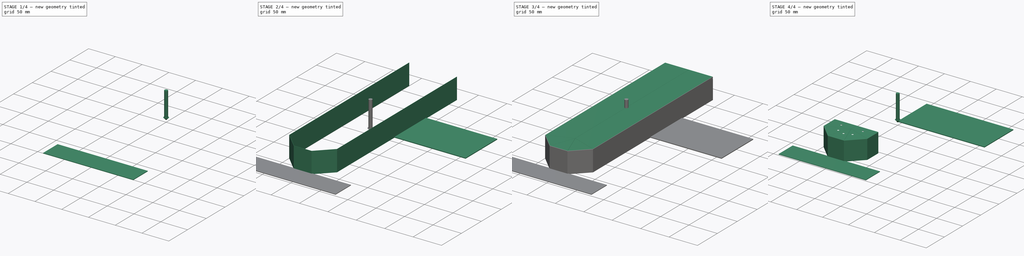
[diagram: build sequence overview — one tinted view per stage of 4, left to right]
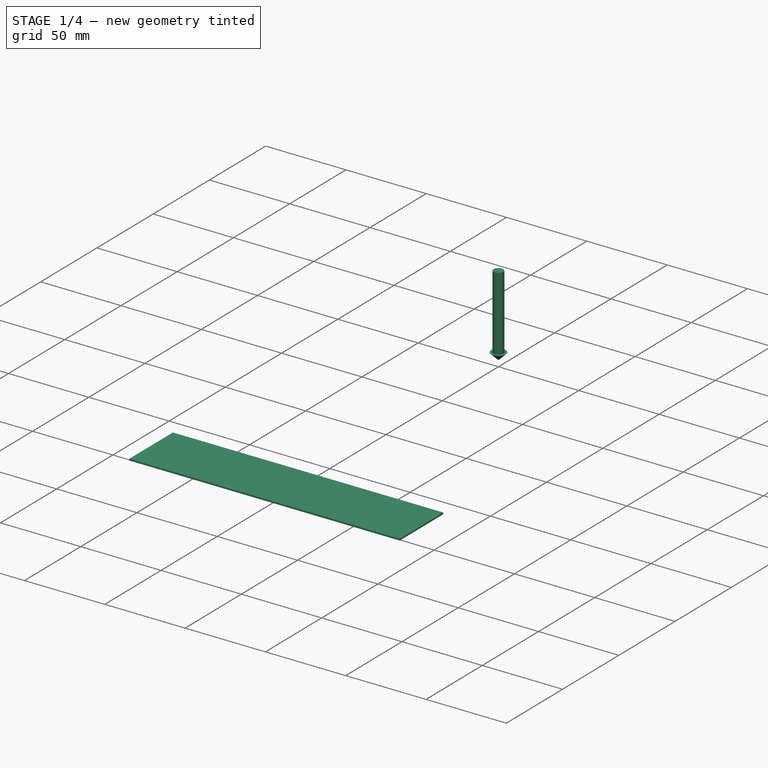
[diagram: stage 1 of 4 — iso view after this stage's code; geometry added in this stage tinted green]
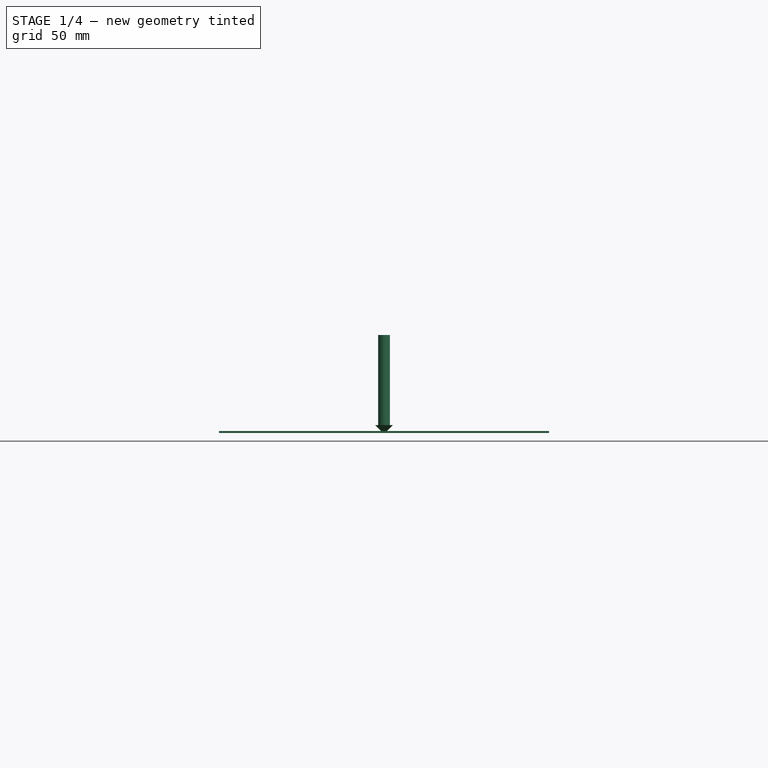
[diagram: stage 1 of 4 — front view after this stage's code; geometry added in this stage tinted green]
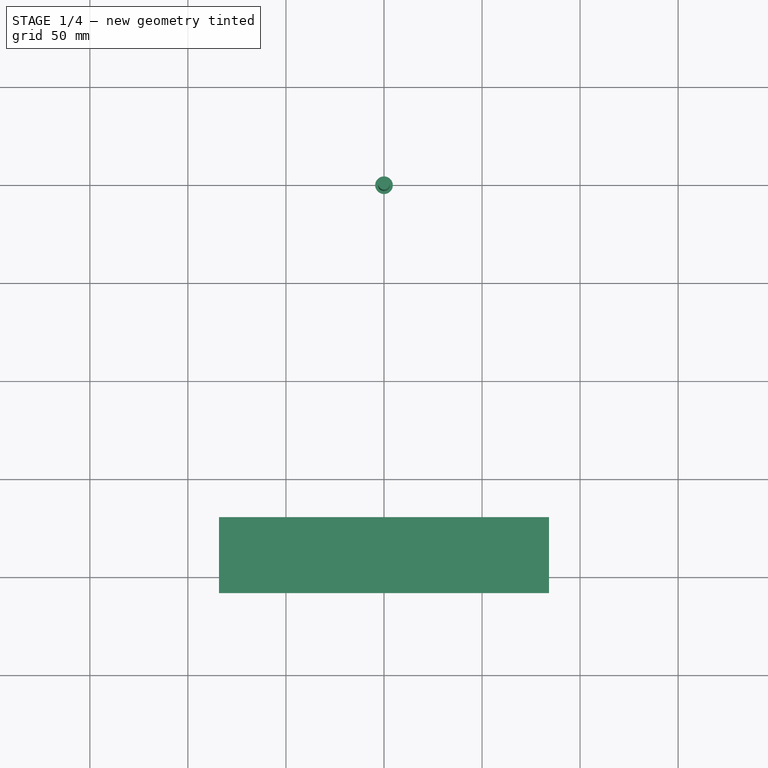
[diagram: stage 1 of 4 — top view after this stage's code; geometry added in this stage tinted green]
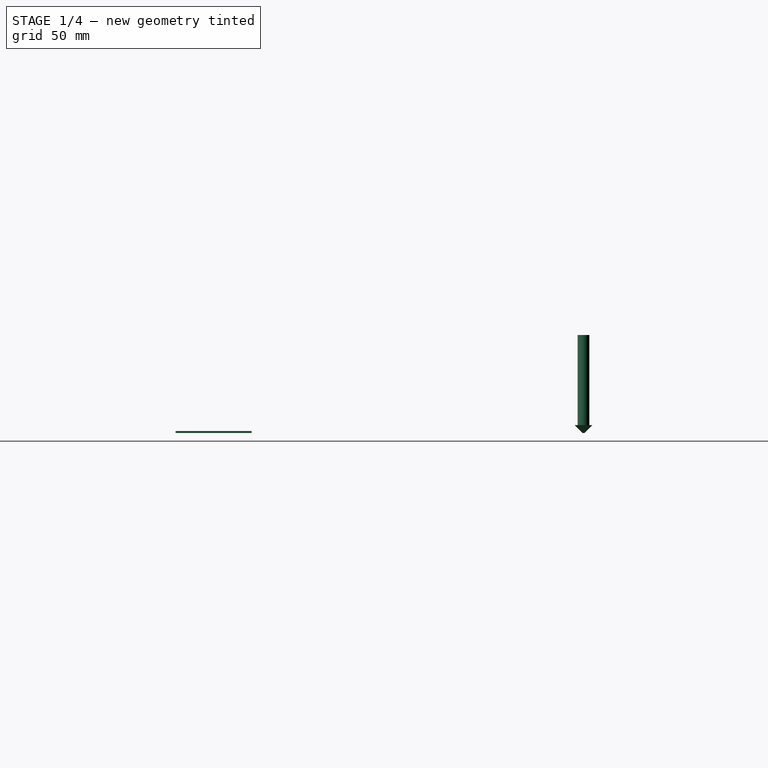
[diagram: stage 1 of 4 — right view after this stage's code; geometry added in this stage tinted green]
FCSTD DOCUMENT  (FreeCAD 0.21R32532 (Git))
Label: composit_full_size2part_test_cup
License: All rights reserved
LicenseURL: http://en.wikipedia.org/wiki/All_rights_reserved
objects: Sketcher::SketchObject×9, Path::FeaturePython×7, Part::FeaturePython×6, App::DocumentObjectGroup×6, PartDesign::FeaturePython×4, PartDesign::Pocket×3, PartDesign::Body×2, App::FeaturePython×2, App::Link×1, PartDesign::Mirrored×1, Part::Feature×1, Part::Part2DObjectPython×1
note: 32 computed .brp shape members not serialized (recipe doc carries the construction recipe); baked Part::Feature solids carry a one-line shape summary decoded from their .brp
EXTERNAL_REF file=composit_full_size2part.FCStd obj=Part

FEATURE [PartDesign::Body] Body  label="Body_material_0.30ansi"
  Group = -> [Sketch,BaseBend,Bend,Sketch001,Pocket,Mirrored,Bend001,Bend002,Sketch002,Sketch003,Pocket001,Sketch004,WireFilter,Pocket002]
  Origin = -> Origin
  Tip = -> Pocket002
FEATURE [Part::Feature] Unfold
  shape: bbox 166.3 x 78.55 x 0.3 mm, 32 faces (baked)
FEATURE [Sketcher::SketchObject] Unfold_Sketch
  FullyConstrained = false
  sketch-geometry (30):
    g0: LineSegment StartX=-83.1592 StartY=-128.45 StartZ=0 EndX=-68.3959 EndY=-128.45 EndZ=0
    g1: LineSegment StartX=-68.3959 StartY=-128.45 StartZ=0 EndX=-52.919 EndY=-169.931 EndZ=0
    g2: LineSegment StartX=-34.198 StartY=-129.798 StartZ=0 EndX=-15.8262 EndY=-170.038 EndZ=0
    g3: LineSegment StartX=-52.5697 StartY=-170.038 StartZ=0 EndX=-34.198 EndY=-129.798 EndZ=0
    g4: LineSegment StartX=15.477 StartY=-169.931 StartZ=0 EndX=1.6e-14 EndY=-128.45 EndZ=0
    g5: LineSegment StartX=-15.477 StartY=-169.931 StartZ=0 EndX=5.3e-15 EndY=-128.45 EndZ=0
    g6: LineSegment StartX=52.5697 StartY=-170.038 StartZ=0 EndX=34.198 EndY=-129.798 EndZ=0
    g7: LineSegment StartX=34.198 StartY=-129.798 StartZ=0 EndX=15.8262 EndY=-170.038 EndZ=0
    g8: LineSegment StartX=83.1592 StartY=-128.45 StartZ=0 EndX=68.3959 EndY=-128.45 EndZ=0
    g9: LineSegment StartX=68.3959 StartY=-128.45 StartZ=0 EndX=52.919 EndY=-169.931 EndZ=0
    g10: Circle CenterX=-32.7314 CenterY=-150.598 CenterZ=0 NormalX=0 NormalY=0 NormalZ=-1 AngleXU=2.35619 Radius=1.7
    g11: Circle CenterX=32.7314 CenterY=-150.598 CenterZ=0 NormalX=0 NormalY=0 NormalZ=-1 AngleXU=-2.35619 Radius=1.7
    g12: Circle CenterX=1.09e-14 CenterY=-149.45 CenterZ=0 NormalX=0 NormalY=0 NormalZ=-1 AngleXU=-3.14159 Radius=1.7
    g13: Circle CenterX=-71.3219 CenterY=-149.246 CenterZ=0 NormalX=0 NormalY=0 NormalZ=-1 AngleXU=1.5708 Radius=1.7
    g14: Circle CenterX=71.3219 CenterY=-149.246 CenterZ=0 NormalX=0 NormalY=0 NormalZ=-1 AngleXU=-1.5708 Radius=1.7
    g15: LineSegment StartX=-83.1592 StartY=-206.998 StartZ=0 EndX=-83.1592 EndY=-128.45 EndZ=0
    g16: LineSegment StartX=83.1592 StartY=-206.998 StartZ=0 EndX=-83.1592 EndY=-206.998 EndZ=0
    g17: LineSegment StartX=83.1592 StartY=-128.45 StartZ=0 EndX=83.1592 EndY=-206.998 EndZ=0
    g18: LineSegment StartX=52.919 StartY=-169.931 StartZ=0 EndX=52.919 EndY=-170.398 EndZ=0
    g19: LineSegment StartX=52.5697 StartY=-170.398 StartZ=0 EndX=52.919 EndY=-170.398 EndZ=0
    g20: LineSegment StartX=52.5697 StartY=-170.038 StartZ=0 EndX=52.5697 EndY=-170.398 EndZ=0
    g21: LineSegment StartX=15.8262 StartY=-170.038 StartZ=0 EndX=15.8262 EndY=-170.398 EndZ=0
    g22: LineSegment StartX=15.477 StartY=-170.398 StartZ=0 EndX=15.8262 EndY=-170.398 EndZ=0
    g23: LineSegment StartX=15.477 StartY=-169.931 StartZ=0 EndX=15.477 EndY=-170.398 EndZ=0
    g24: LineSegment StartX=-15.477 StartY=-169.931 StartZ=0 EndX=-15.477 EndY=-170.398 EndZ=0
    g25: LineSegment StartX=-15.8262 StartY=-170.398 StartZ=0 EndX=-15.477 EndY=-170.398 EndZ=0
    g26: LineSegment StartX=-15.8262 StartY=-170.038 StartZ=0 EndX=-15.8262 EndY=-170.398 EndZ=0
    g27: LineSegment StartX=-52.5697 StartY=-170.038 StartZ=0 EndX=-52.5697 EndY=-170.398 EndZ=0
    g28: LineSegment StartX=-52.919 StartY=-170.398 StartZ=0 EndX=-52.5697 EndY=-170.398 EndZ=0
    g29: LineSegment StartX=-52.919 StartY=-170.398 StartZ=0 EndX=-52.919 EndY=-169.931 EndZ=0
FEATURE [Sketcher::SketchObject] Unfold_Sketch_Outline
  FullyConstrained = false
  sketch-geometry (25):
    g0: LineSegment StartX=83.1592 StartY=-128.45 StartZ=0 EndX=83.1592 EndY=-206.998 EndZ=0
    g1: LineSegment StartX=83.1592 StartY=-206.998 StartZ=0 EndX=-83.1592 EndY=-206.998 EndZ=0
    g2: LineSegment StartX=-83.1592 StartY=-206.998 StartZ=0 EndX=-83.1592 EndY=-128.45 EndZ=0
    g3: LineSegment StartX=-83.1592 StartY=-128.45 StartZ=0 EndX=-68.3959 EndY=-128.45 EndZ=0
    g4: LineSegment StartX=-68.3959 StartY=-128.45 StartZ=0 EndX=-52.919 EndY=-169.931 EndZ=0
    g5: LineSegment StartX=-52.919 StartY=-170.398 StartZ=0 EndX=-52.919 EndY=-169.931 EndZ=0
    g6: LineSegment StartX=-52.919 StartY=-170.398 StartZ=0 EndX=-52.5697 EndY=-170.398 EndZ=0
    g7: LineSegment StartX=-52.5697 StartY=-170.038 StartZ=0 EndX=-52.5697 EndY=-170.398 EndZ=0
    g8: LineSegment StartX=-52.5697 StartY=-170.038 StartZ=0 EndX=-34.198 EndY=-129.798 EndZ=0
    g9: LineSegment StartX=-34.198 StartY=-129.798 StartZ=0 EndX=-15.8262 EndY=-170.038 EndZ=0
    g10: LineSegment StartX=-15.8262 StartY=-170.038 StartZ=0 EndX=-15.8262 EndY=-170.398 EndZ=0
    g11: LineSegment StartX=-15.8262 StartY=-170.398 StartZ=0 EndX=-15.477 EndY=-170.398 EndZ=0
    g12: LineSegment StartX=-15.477 StartY=-169.931 StartZ=0 EndX=-15.477 EndY=-170.398 EndZ=0
    g13: LineSegment StartX=-15.477 StartY=-169.931 StartZ=0 EndX=5.3e-15 EndY=-128.45 EndZ=0
    g14: LineSegment StartX=15.477 StartY=-169.931 StartZ=0 EndX=1.6e-14 EndY=-128.45 EndZ=0
    g15: LineSegment StartX=15.477 StartY=-169.931 StartZ=0 EndX=15.477 EndY=-170.398 EndZ=0
    g16: LineSegment StartX=15.477 StartY=-170.398 StartZ=0 EndX=15.8262 EndY=-170.398 EndZ=0
    g17: LineSegment StartX=15.8262 StartY=-170.038 StartZ=0 EndX=15.8262 EndY=-170.398 EndZ=0
    g18: LineSegment StartX=34.198 StartY=-129.798 StartZ=0 EndX=15.8262 EndY=-170.038 EndZ=0
    g19: LineSegment StartX=52.5697 StartY=-170.038 StartZ=0 EndX=34.198 EndY=-129.798 EndZ=0
    g20: LineSegment StartX=52.5697 StartY=-170.038 StartZ=0 EndX=52.5697 EndY=-170.398 EndZ=0
    g21: LineSegment StartX=52.5697 StartY=-170.398 StartZ=0 EndX=52.919 EndY=-170.398 EndZ=0
    g22: LineSegment StartX=52.919 StartY=-169.931 StartZ=0 EndX=52.919 EndY=-170.398 EndZ=0
    g23: LineSegment StartX=68.3959 StartY=-128.45 StartZ=0 EndX=52.919 EndY=-169.931 EndZ=0
    g24: LineSegment StartX=83.1592 StartY=-128.45 StartZ=0 EndX=68.3959 EndY=-128.45 EndZ=0
FEATURE [Sketcher::SketchObject] Unfold_Sketch_Internal
  FullyConstrained = false
  sketch-geometry (5):
    g0: Circle CenterX=-32.7314 CenterY=-150.598 CenterZ=0 NormalX=0 NormalY=0 NormalZ=-1 AngleXU=2.35619 Radius=1.7
    g1: Circle CenterX=32.7314 CenterY=-150.598 CenterZ=0 NormalX=0 NormalY=0 NormalZ=-1 AngleXU=-2.35619 Radius=1.7
    g2: Circle CenterX=71.3219 CenterY=-149.246 CenterZ=0 NormalX=0 NormalY=0 NormalZ=-1 AngleXU=-1.5708 Radius=1.7
    g3: Circle CenterX=-71.3219 CenterY=-149.246 CenterZ=0 NormalX=0 NormalY=0 NormalZ=-1 AngleXU=1.5708 Radius=1.7
    g4: Circle CenterX=1.09e-14 CenterY=-149.45 CenterZ=0 NormalX=0 NormalY=0 NormalZ=-1 AngleXU=-3.14159 Radius=1.7
FEATURE [Sketcher::SketchObject] Unfold_Sketch_bends
  FullyConstrained = false
  sketch-geometry (9):
    g0: LineSegment StartX=-83.1592 StartY=-170.249 StartZ=0 EndX=-52.919 EndY=-170.249 EndZ=0
    g1: LineSegment StartX=-52.7444 StartY=-170.398 StartZ=0 EndX=-52.7444 EndY=-206.998 EndZ=0
    g2: LineSegment StartX=-52.5697 StartY=-170.249 StartZ=0 EndX=-15.8262 EndY=-170.249 EndZ=0
    g3: LineSegment StartX=-15.6516 StartY=-170.398 StartZ=0 EndX=-15.6516 EndY=-206.998 EndZ=0
    g4: LineSegment StartX=15.8262 StartY=-170.249 StartZ=0 EndX=52.5697 EndY=-170.249 EndZ=0
    g5: LineSegment StartX=52.919 StartY=-170.249 StartZ=0 EndX=83.1592 EndY=-170.249 EndZ=0
    g6: LineSegment StartX=52.7444 StartY=-170.398 StartZ=0 EndX=52.7444 EndY=-206.998 EndZ=0
    g7: LineSegment StartX=15.6516 StartY=-170.398 StartZ=0 EndX=15.6516 EndY=-206.998 EndZ=0
    g8: LineSegment StartX=-15.477 StartY=-170.249 StartZ=0 EndX=15.477 EndY=-170.249 EndZ=0
FEATURE [App::FeaturePython] SetupSheet  # Path/CAM operation (typed FeaturePython)
  ClearanceHeightExpression = OpStockZMax+SetupSheet.ClearanceHeightOffset
  ClearanceHeightOffset = 5
  CoolantMode = 0
  CoolantModes = None | Flood | Mist
  FinalDepthExpression = -0.1 mm
  HorizRapid = 0
  ProfileDirection = 1
  ProfileSide = 0
  ProfileUseComp = true
  ProfileprocessCircles = true
  ProfileprocessHoles = true
  ProfileprocessPerimeter = true
  SafeHeightExpression = OpStockZMax+SetupSheet.SafeHeightOffset
  SafeHeightOffset = 3
  StartDepthExpression = 3 mm
  StepDownExpression = 4 mm
  VertRapid = 0
FEATURE [Part::FeaturePython] Clone  label="Model-Unfold"  # Draft clone (typed FeaturePython)
  AttacherType = Attacher::AttachEngine3D
  Fuse = false
  Objects = -> [Unfold]
  PathResource = Model
  Placement = pos=(83.1592,206.998,-36.7) rot=(0,0,1;0rad)
  Scale = (1,1,1)
FEATURE [Path::FeaturePython] Profile  # Path/CAM operation (typed FeaturePython)
  Active = true
  AreaParams:
    Tolerance = 1e-07
    FitArcs = True
    Simplify = False
    CleanDistance = 0.0
    Accuracy = 0.01
    Unit = 1.0
    MinArcPoints = 4
    MaxArcPoints = 100
    ClipperScale = 10000000.0
    Fill = 0
    Coplanar = 0
    Reorient = True
    Outline = False
    Explode = False
    OpenMode = 0
    Deflection = 0.01
    SubjectFill = 0
    ClipFill = 0
    Offset = -1.585
    ExtraPass = 0
    Stepover = 0.0
    LastStepover = 0.0
    JoinType = 0
    EndType = 0
    MiterLimit = 2.0
    RoundPrecision = 0.0
    PocketMode = 0
    ToolRadius = 1.0
    PocketExtraOffset = 0.0
    PocketStepover = 0.0
    PocketLastStepover = 0.0
    FromCenter = False
    Angle = 45.0
    AngleShift = 0.0
    Shift = 0.0
    Thicken = False
    SectionCount = -1
    Stepdown = 1.0
    SectionOffset = 0.0
    SectionTolerance = 1e-07
    SectionMode = 2
    Project = False
  Base = -> [Clone]
  ClearanceHeight = 6.3
  CoolantMode = 0
  CycleTime = 00:00:14
  Direction = 1
  FinalDepth = -0.1
  HandleMultipleFeatures = 0
  JoinType = 0
  MiterLimit = 0.1
  OffsetExtra = 0
  OpFinalDepth = -4.26e-14
  OpStartDepth = 1.3
  OpStockZMax = 1.3
  OpStockZMin = -4.26e-14
  OpToolDiameter = 3.17
  PathParams = {'orientation': 1, 'feedrate': 33.333333333333336, 'feedrate_v': 8.333333333333334, 'verbose': True, 'resume_height': 4.300000000000182, 'retraction': 6.300000000000182, 'return_end': True, 'preamble': False, 'start': Vector (115.784441479713, 56.40422405974462, 6.300000000000182)}
  SafeHeight = 4.3
  Side = 0
  SplitArcs = false
  StartDepth = 3
  StartPoint = (0,0,0)
  StepDown = 4
  ToolController = -> __175mm_Endmill
  UseComp = true
  UseStartPoint = false
  processCircles = true
  processHoles = true
  processPerimeter = false
  expr: ClearanceHeight = OpStockZMax + SetupSheet.ClearanceHeightOffset
  expr: FinalDepth = -0.1 mm
  expr: SafeHeight = OpStockZMax + SetupSheet.SafeHeightOffset
  expr: StartDepth = 3 mm
  expr: StepDown = 4 mm
FEATURE [Path::FeaturePython] Profile001  # Path/CAM operation (typed FeaturePython)
  Active = true
  AreaParams:
    Tolerance = 1e-07
    FitArcs = True
    Simplify = False
    CleanDistance = 0.0
    Accuracy = 0.01
    Unit = 1.0
    MinArcPoints = 4
    MaxArcPoints = 100
    ClipperScale = 10000000.0
    Fill = 0
    Coplanar = 0
    Reorient = True
    Outline = False
    Explode = False
    OpenMode = 0
    Deflection = 0.01
    SubjectFill = 0
    ClipFill = 0
    Offset = 1.585
    ExtraPass = 0
    Stepover = 0.0
    LastStepover = 0.0
    JoinType = 0
    EndType = 0
    MiterLimit = 2.0
    RoundPrecision = 0.0
    PocketMode = 0
    ToolRadius = 1.0
    PocketExtraOffset = 0.0
    PocketStepover = 0.0
    PocketLastStepover = 0.0
    FromCenter = False
    Angle = 45.0
    AngleShift = 0.0
    Shift = 0.0
    Thicken = False
    SectionCount = -1
    Stepdown = 1.0
    SectionOffset = 0.0
    SectionTolerance = 1e-07
    SectionMode = 2
    Project = False
  ClearanceHeight = 6.3
  CoolantMode = 0
  CycleTime = 00:00:28
  Direction = 1
  FinalDepth = -0.1
  HandleMultipleFeatures = 0
  JoinType = 0
  MiterLimit = 0.1
  OffsetExtra = 0
  OpFinalDepth = -4.26e-14
  OpStartDepth = 1.3
  OpStockZMax = 1.3
  OpStockZMin = -4.26e-14
  OpToolDiameter = 3.17
  PathParams:
    orientation = 0
    feedrate = 33.333333333333336
    feedrate_v = 8.333333333333334
    verbose = True
    resume_height = 4.300000000000182
    retraction = 6.300000000000182
    return_end = True
    preamble = False
  SafeHeight = 4.3
  Side = 0
  SplitArcs = false
  StartDepth = 3
  StartPoint = (0,0,0)
  StepDown = 4
  ToolController = -> __175mm_Endmill
  UseComp = true
  UseStartPoint = false
  processCircles = true
  processHoles = true
  processPerimeter = true
  expr: ClearanceHeight = OpStockZMax + SetupSheet.ClearanceHeightOffset
  expr: FinalDepth = -0.1 mm
  expr: SafeHeight = OpStockZMax + SetupSheet.SafeHeightOffset
  expr: StartDepth = 3 mm
  expr: StepDown = 4 mm
FEATURE [App::DocumentObjectGroup] Operations
  Group = -> [Profile,Profile001]
FEATURE [Path::FeaturePython] Job  # Path/CAM operation (typed FeaturePython)
  CycleTime = 00:00:42
  Fixtures = G54
  GeometryTolerance = 0.01
  JobType = 0
  LastPostProcessDate = 2023-04-21 19:41:16.197399
  LastPostProcessOutput = <userpath>/56D3-E9D0/1.tap \n<userpath>/56D3-E9D0/3.tap
  Model = -> Model
  Operations = -> Operations
  OrderOutputBy = 2
  PostProcessor = 1
  PostProcessorOutputFile = %d.%j.tap
  SetupSheet = -> SetupSheet
  SplitOutput = true
  Stock = -> Stock
  Tools = -> Tools
FEATURE [App::FeaturePython] SetupSheet001  # Path/CAM operation (typed FeaturePython)
  ClearanceHeightExpression = OpStockZMax+SetupSheet001.ClearanceHeightOffset
  ClearanceHeightOffset = 5
  CoolantMode = 0
  CoolantModes = None | Flood | Mist
  DeburrExtraDepth = 0
  DeburrWidth = 2.7
  FinalDepthExpression = 0.6 mm
  HorizRapid = 0
  ProfileDirection = 1
  ProfileprocessCircles = true
  ProfileprocessHoles = true
  ProfileprocessPerimeter = true
  SafeHeightExpression = OpStockZMax+SetupSheet001.SafeHeightOffset
  SafeHeightOffset = 3
  StartDepthExpression = 3 mm
  StepDownExpression = OpToolDiameter
  VertRapid = 0
FEATURE [Part::Part2DObjectPython] Clone2D  label="Model-Unfold_Sketch_bends"  # Draft 2D object (typed FeaturePython)
  Fuse = false
  Objects = -> [Unfold_Sketch_bends]
  PathResource = Model
  Placement = pos=(83.1592,206.998,-36.7) rot=(0,0,1;0rad)
  Scale = (1,1,1)
  expr: Placement = <<Model-Unfold>>.Placement
FEATURE [App::DocumentObjectGroup] Model001
  Group = -> [Clone2D]
FEATURE [Part::FeaturePython] ToolBit001  label="NZV6109015"  # Path/CAM toolbit (typed FeaturePython)
  BitPropertyNames = Chipload | CuttingEdgeAngle | CuttingEdgeHeight | Diameter | Flutes | Length | Material | ShankDiameter | TipDiameter
  BitShape = <path>
  Chipload = 0
  CuttingEdgeAngle = 90
  CuttingEdgeHeight = 4
  Diameter = 10
  Flutes = 0
  Length = 50
  Material = 0
  ShankDiameter = 6
  ShapeName = chamfer
  TipDiameter = 1
FEATURE [Path::FeaturePython] NZV6109015  label="NZV6109016"  # Path/CAM operation (typed FeaturePython)
  HorizFeed = 51.6667
  HorizRapid = 0
  SpindleDir = 0
  SpindleSpeed = 18000
  Tool = -> ToolBit001
  ToolNumber = 2
  VertFeed = 16.6667
  VertRapid = 0
  expr: HorizRapid = SetupSheet001.HorizRapid
  expr: VertRapid = SetupSheet001.VertRapid
FEATURE [App::DocumentObjectGroup] Tools001
  Group = -> [NZV6109015]
FEATURE [Part::FeaturePython] Stock001  # WARN: FeaturePython — macro-defined, semantics opaque (R4)
  Base = -> Model001
  ExtXneg = 1
  ExtXpos = 1
  ExtYneg = 1
  ExtYpos = 1
  ExtZneg = 0
  ExtZpos = 1
  Placement = pos=(-83.1592,-206.998,0) rot=(0,0,1;0rad)
  StockType = FromBase
FEATURE [Path::FeaturePython] Engrave  # Path/CAM operation (typed FeaturePython)
  Active = true
  ClearanceHeight = 6
  CoolantMode = 0
  CycleTime = 00:00:17
  FinalDepth = 0.5
  OpFinalDepth = -46.7
  OpStartDepth = -36.7
  OpStockZMax = 1
  OpStockZMin = 0
  OpToolDiameter = 10
  SafeHeight = 4
  StartDepth = 3
  StartVertex = 0
  StepDown = 10
  ToolController = -> NZV6109015
  expr: ClearanceHeight = OpStockZMax + SetupSheet001.ClearanceHeightOffset
  expr: FinalDepth = 0.5
  expr: SafeHeight = OpStockZMax + SetupSheet001.SafeHeightOffset
  expr: StartDepth = 3 mm
  expr: StepDown = OpToolDiameter
FEATURE [App::DocumentObjectGroup] Operations001
  Group = -> [Engrave]
FEATURE [Path::FeaturePython] Job001  # Path/CAM operation (typed FeaturePython)
  CycleTime = 00:00:17
  Fixtures = G54
  GeometryTolerance = 0.01
  JobType = 0
  LastPostProcessDate = 2023-04-21 19:41:34.565290
  LastPostProcessOutput = <userpath>/56D3-E9D0/2.tap
  Model = -> Model001
  Operations = -> Operations001
  OrderOutputBy = 0
  PostProcessor = 1
  PostProcessorOutputFile = %d.%j.tap
  SetupSheet = -> SetupSheet001
  SplitOutput = false
  Stock = -> Stock001
  Tools = -> Tools001
note: 2 file-system paths scrubbed to <path> (originals preserved in the JSON sidecar)
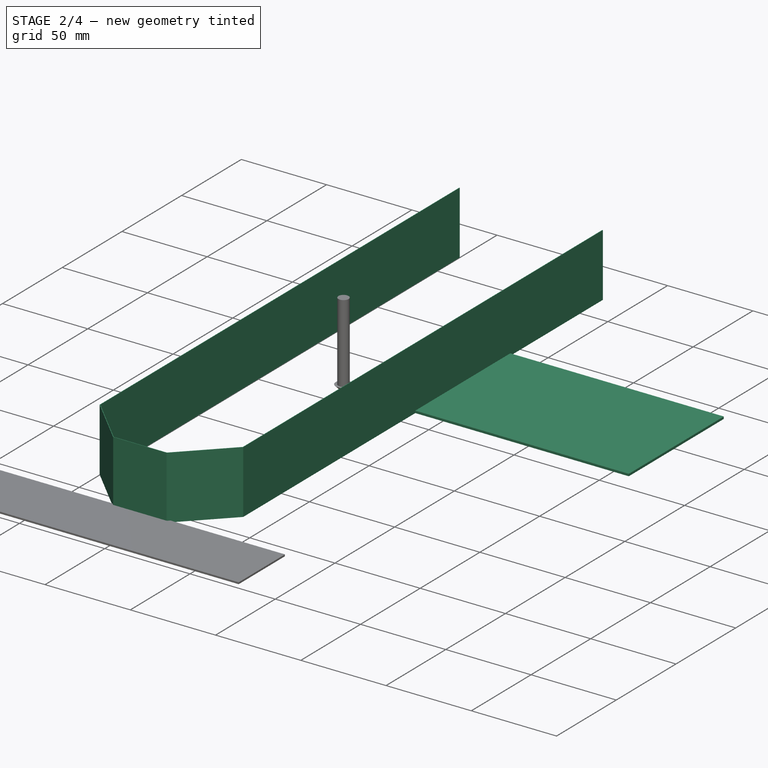
[diagram: stage 2 of 4 — iso view after this stage's code; geometry added in this stage tinted green]
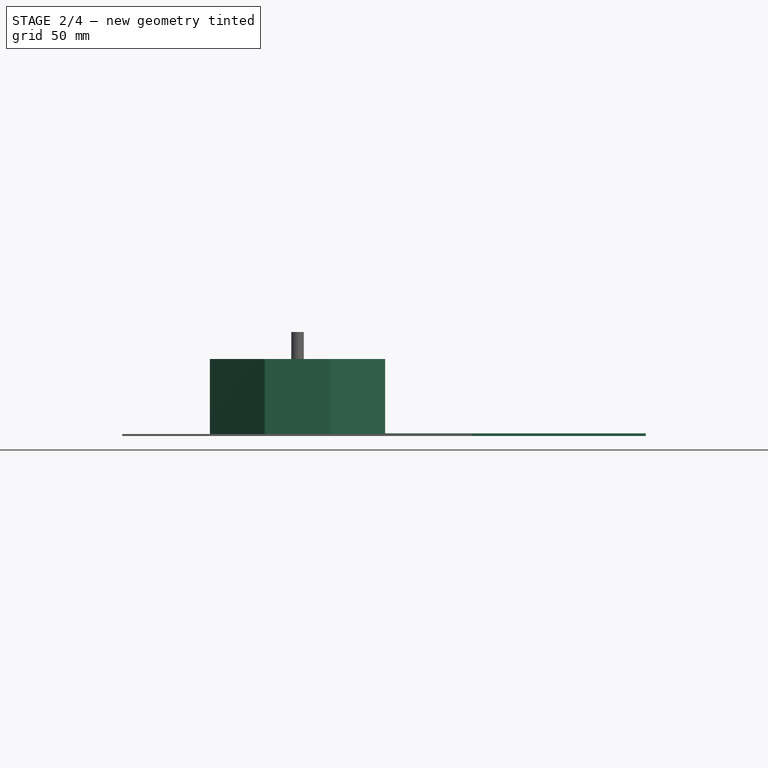
[diagram: stage 2 of 4 — front view after this stage's code; geometry added in this stage tinted green]
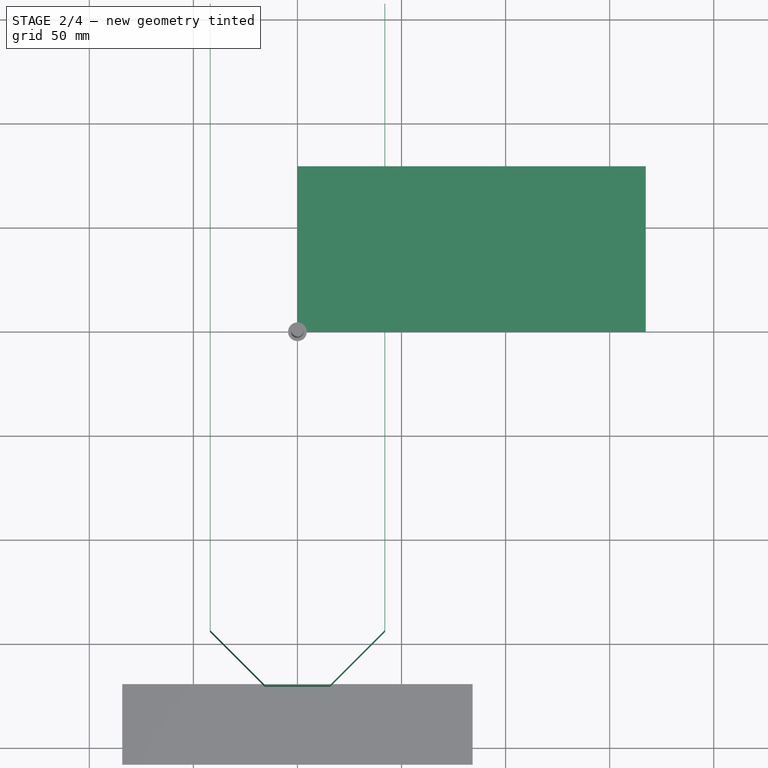
[diagram: stage 2 of 4 — top view after this stage's code; geometry added in this stage tinted green]
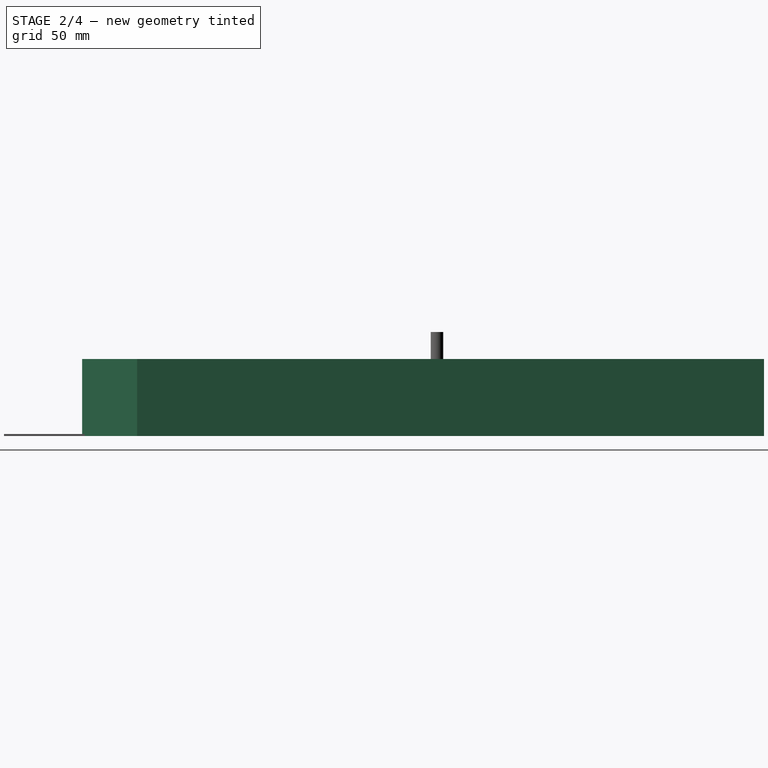
[diagram: stage 2 of 4 — right view after this stage's code; geometry added in this stage tinted green]
FEATURE [Sketcher::SketchObject] Sketch
  FullyConstrained = true
  MapMode = 5
  Support = -> [XY_Plane]
  expr: Constraints[19] = 157.0653 mm
  sketch-geometry (7):
    g0: LineSegment StartX=42.1 StartY=157.065 StartZ=0 EndX=42.1 EndY=-144.143 EndZ=0
    g1: LineSegment StartX=42.1 StartY=-144.143 StartZ=0 EndX=15.7426 EndY=-170.5 EndZ=0
    g2: LineSegment StartX=15.7426 StartY=-170.5 StartZ=0 EndX=-15.7426 EndY=-170.5 EndZ=0
    g3: LineSegment StartX=-15.7426 StartY=-170.5 StartZ=0 EndX=-42.1 EndY=-144.143 EndZ=0
    g4: LineSegment StartX=-42.1 StartY=-144.143 StartZ=0 EndX=-42.1 EndY=157.065 EndZ=0
    g5: LineSegment StartX=39.1 StartY=-142.9 StartZ=0 EndX=14.5 EndY=-167.5 EndZ=0
    g6: LineSegment StartX=14.5 StartY=-167.5 StartZ=0 EndX=6.57e-14 EndY=-167.5 EndZ=0
  constraints (21):
    c: Vertical(g0)
    c: Coincident(g0,g1)
    c: Coincident(g1,g2)
    c: Coincident(g2,g3)
    c: Coincident(g3,g4)
    c: Vertical(g4)
    c: Symmetric(g3,g0,g-2)
    c: Symmetric(g2,g1,g-2)
    c: Angle(g1) = -2.35619
    c: Coincident(g5,g6)
    c: PointOnObject(g6,g-2)
    c: Horizontal(g6)
    c: Distance(g6,g2) = 3
    c: Distance(g0,g5) = 3
    c: DistanceX(g6,g6) = 14.5
    c: Parallel(g1,g5)
    c: DistanceX(g3,g0) = 84.2  'width'
    c: Horizontal(g4,g0)
    c: DistanceY(g1) = -170.5
    c: DistanceY(g0) = 157.065
    c: Distance(g5,g0) = 3
FEATURE [PartDesign::FeaturePython] BaseBend  # WARN: FeaturePython — macro-defined, semantics opaque (R4)
  BendSide = 0
  BendSketch = -> Sketch
  MidPlane = false
  Reverse = false
  length = 37
  radius = 0.1
  thickness = 0.3
FEATURE [App::DocumentObjectGroup] Model
  Group = -> [Clone]
FEATURE [Part::FeaturePython] ToolBit  label="3.175mm Endmill"  # Path/CAM toolbit (typed FeaturePython)
  BitPropertyNames = Chipload | CuttingEdgeHeight | Diameter | Flutes | Length | Material | ShankDiameter | SpindleDirection
  BitShape = <path>
  Chipload = 0
  CuttingEdgeHeight = 30
  Diameter = 3.17
  Flutes = 0
  Length = 10
  Material = 0
  ShankDiameter = 3
  ShapeName = endmill
  SpindleDirection = 0
FEATURE [Path::FeaturePython] __175mm_Endmill  label="3.175mm Endmill001"  # Path/CAM operation (typed FeaturePython)
  HorizFeed = 33.3333
  HorizRapid = 0
  SpindleDir = 0
  SpindleSpeed = 18000
  Tool = -> ToolBit
  ToolNumber = 1
  VertFeed = 8.33333
  VertRapid = 0
  expr: HorizRapid = SetupSheet.HorizRapid
  expr: VertRapid = SetupSheet.VertRapid
FEATURE [App::DocumentObjectGroup] Tools
  Group = -> [__175mm_Endmill]
FEATURE [Part::FeaturePython] Stock  # WARN: FeaturePython — macro-defined, semantics opaque (R4)
  Base = -> Model
  ExtXneg = 0
  ExtXpos = 1
  ExtYneg = 0
  ExtYpos = 1
  ExtZneg = 0
  ExtZpos = 1
  Placement = pos=(-8.56915e-11,0,-4.26e-14) rot=(0,0,1;0rad)
  StockType = FromBase
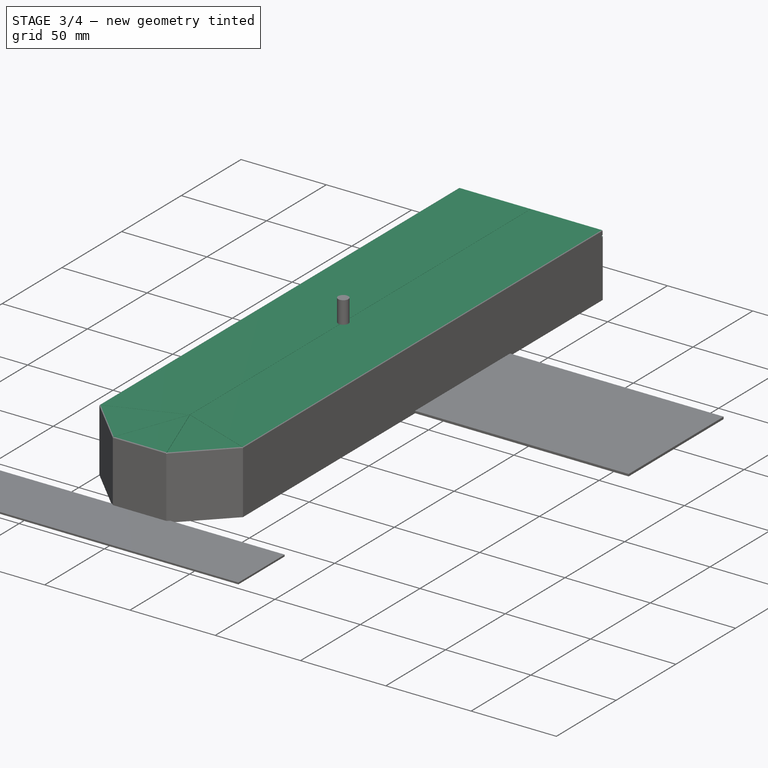
[diagram: stage 3 of 4 — iso view after this stage's code; geometry added in this stage tinted green]
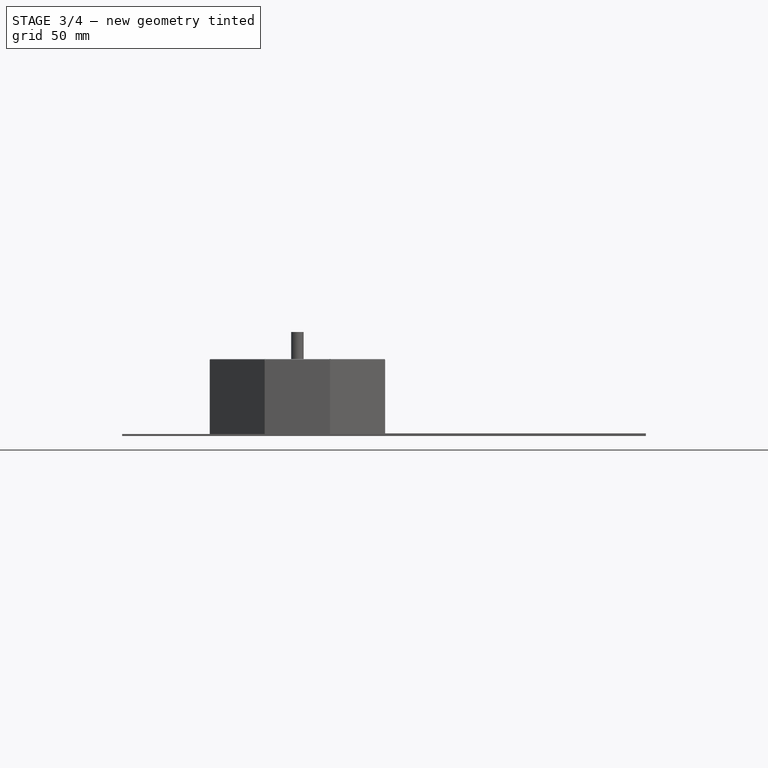
[diagram: stage 3 of 4 — front view after this stage's code; geometry added in this stage tinted green]
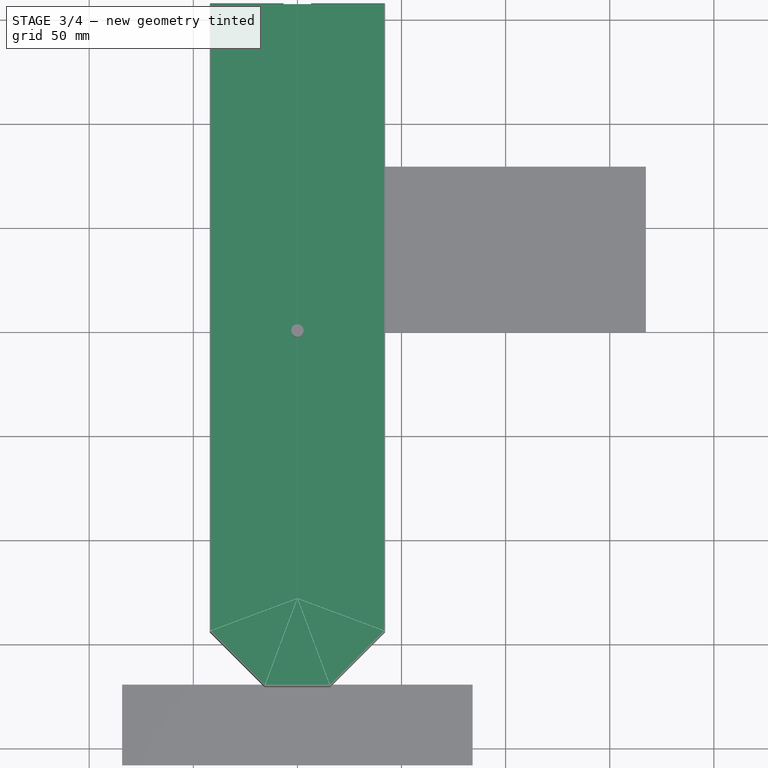
[diagram: stage 3 of 4 — top view after this stage's code; geometry added in this stage tinted green]
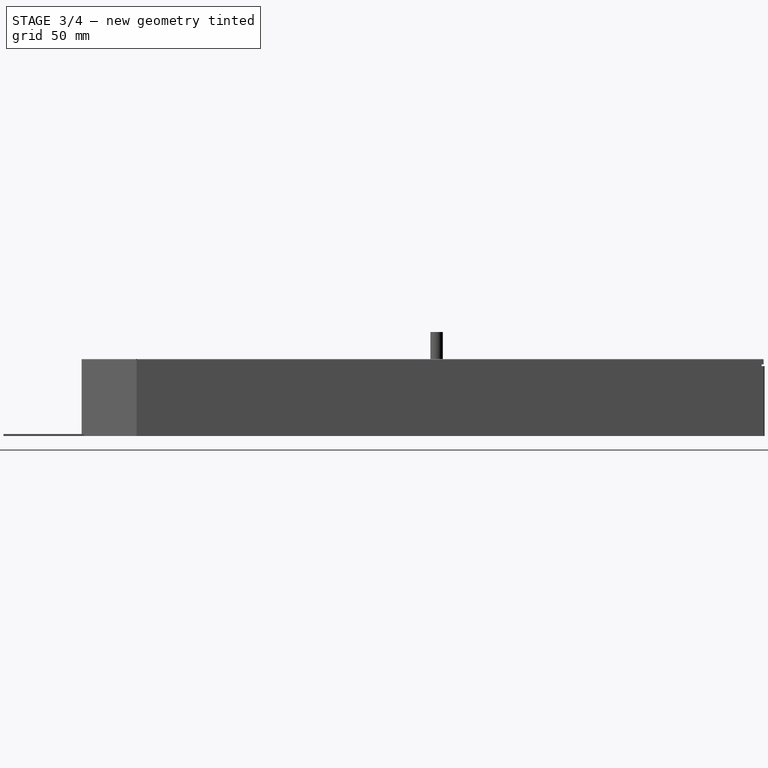
[diagram: stage 3 of 4 — right view after this stage's code; geometry added in this stage tinted green]
FEATURE [PartDesign::FeaturePython] Bend  # WARN: FeaturePython — macro-defined, semantics opaque (R4)
  AutoMiter = false
  BaseFeature = -> BaseBend
  BendType = 1
  LengthList = [42.1]
  LengthSpec = 1
  ReliefFactor = 0.7
  UseReliefFactor = false
  angle = 90
  baseObject = -> BaseBend [Edge33,Edge17,Edge49,Edge65,Edge4]
  bendAList = [90]
  extend1 = 0
  extend2 = 0
  gap1 = 0.1
  gap2 = 0.1
  invert = false
  kfactor = 0.5
  length = 42.1
  maxExtendDist = 5
  minGap = 0.1
  minReliefGap = 1
  miterangle1 = 0
  miterangle2 = 0
  offset = 0
  radius = 0.1
  reliefType = 0
  reliefd = 1
  reliefw = 0.8
  sketchflip = false
  sketchinvert = false
  unfold = false
  expr: length = Sketch.Constraints.width / 2
  expr: radius = BaseBend.radius
FEATURE [App::Link] Link
  LinkedObject = -> <external composit_full_size2part.FCStd>#Part
  expr: LinkedObject = composit_full_size2part#Part._self
FEATURE [Sketcher::SketchObject] Sketch001
  AttachmentOffset = pos=(0,0,36.7) rot=(0,0,1;0rad)
  ExternalGeometry = -> [Sketch]
  FullyConstrained = true
  MapMode = 5
  Placement = pos=(0,0,36.7) rot=(0,0,1;0rad)
  Support = -> [XY_Plane]
  expr: .AttachmentOffset.Base.z = BaseBend.length - BaseBend.thickness
  sketch-geometry (14):
    g0: LineSegment StartX=0.05 StartY=157.065 StartZ=0 EndX=0 EndY=157.065 EndZ=0
    g1: LineSegment StartX=0 StartY=157.065 StartZ=0 EndX=0 EndY=-128.45 EndZ=0
    g2: LineSegment StartX=0 StartY=-128.45 StartZ=0 EndX=15.6259 EndY=-170.33 EndZ=0
    g3: LineSegment StartX=15.6259 StartY=-170.33 StartZ=0 EndX=15.7196 EndY=-170.295 EndZ=0
    g4: LineSegment StartX=15.7196 StartY=-170.295 StartZ=0 EndX=0.1405 EndY=-128.541 EndZ=0
    g5: LineSegment StartX=0.1405 StartY=-128.541 StartZ=0 EndX=41.8951 EndY=-144.12 EndZ=0
    g6: LineSegment StartX=41.8951 StartY=-144.12 StartZ=0 EndX=41.9301 EndY=-144.026 EndZ=0
    g7: LineSegment StartX=41.9301 StartY=-144.026 StartZ=0 EndX=0.05 EndY=-128.4 EndZ=0
    g8: LineSegment StartX=0.05 StartY=-128.4 StartZ=0 EndX=0.05 EndY=157.065 EndZ=0
    g9: LineSegment StartX=0.05 StartY=157.065 StartZ=0 EndX=-0.05 EndY=157.065 EndZ=0
    g10: LineSegment StartX=0 StartY=-128.45 StartZ=0 EndX=0.05 EndY=-128.4 EndZ=0
    g11: LineSegment StartX=0.1405 StartY=-128.541 StartZ=0 EndX=0.025 EndY=-128.425 EndZ=0
    g12: LineSegment StartX=42.1 StartY=-144.143 StartZ=0 EndX=41.9126 EndY=-144.073 EndZ=0
    g13: LineSegment StartX=15.7426 StartY=-170.5 StartZ=0 EndX=15.6727 EndY=-170.313 EndZ=0
  constraints (37):
    c: PointOnObject(g0,g-2)
    c: Horizontal(g0)
    c: Coincident(g0,g1)
    c: PointOnObject(g1,g-2)
    c: Coincident(g1,g2)
    c: Coincident(g2,g3)
    c: Coincident(g3,g4)
    c: Coincident(g4,g5)
    c: Coincident(g5,g6)
    c: Coincident(g6,g7)
    c: Coincident(g7,g8)
    c: Coincident(g8,g0)
    c: Vertical(g8)
    c: Horizontal(g0,g-4)
    c: Perpendicular(g5,g6)
    c: Perpendicular(g7,g6)
    c: Perpendicular(g4,g3)
    c: Perpendicular(g2,g3)
    c: Equal(g3,g6)
    c: Coincident(g9,g0)
    c: Symmetric(g9,g0,g-2)
    c: Equal(g9,g3)
    c: DistanceX(g9,g9) = 0.1
    c: Coincident(g10,g1)
    c: Coincident(g10,g7)
    c: Coincident(g11,g4)
    c: Perpendicular(g10,g11)
    c: Symmetric(g1,g7,g11)
    c: Coincident(g12,g-4)
    c: Coincident(g13,g-3)
    c: Symmetric(g2,g3,g13)
    c: Perpendicular(g13,g3)
    c: Perpendicular(g6,g12)
    c: Symmetric(g5,g6,g12)
    c: Equal(g12,g13)
    c: Distance(g13) = 0.2
    c: Equal(g5,g4)
FEATURE [PartDesign::Pocket] Pocket
  BaseFeature = -> Bend
  Direction = (0,0,-1)
  Length = 5
  Length2 = 5
  Profile = -> Sketch001
  ReferenceAxis = -> Sketch001 [N_Axis]
  Reversed = true
  Type = 0
FEATURE [PartDesign::Mirrored] Mirrored
  BaseFeature = -> Pocket
  MirrorPlane = -> Sketch001 [V_Axis]
  Originals = -> [Pocket]
  Refine = true
FEATURE [PartDesign::FeaturePython] Bend001  # WARN: FeaturePython — macro-defined, semantics opaque (R4)
  AutoMiter = true
  BaseFeature = -> Mirrored
  BendType = 0
  LengthList = [35.1]
  LengthSpec = 0
  ReliefFactor = 0.7
  UseReliefFactor = false
  angle = 90
  baseObject = -> Mirrored [Edge147,Edge55]
  bendAList = [90]
  extend1 = 0
  extend2 = 0
  gap1 = 0
  gap2 = 3
  invert = false
  kfactor = 0.5
  length = 35.1
  maxExtendDist = 5
  minGap = 0.1
  minReliefGap = 1
  miterangle1 = 0
  miterangle2 = 0
  offset = 0
  radius = 0.1
  reliefType = 0
  reliefd = 1
  reliefw = 0.8
  sketchflip = false
  sketchinvert = false
  unfold = false
  expr: length = Sketch.Constraints.width / 2 - 7 mm
  expr: radius = BaseBend.radius
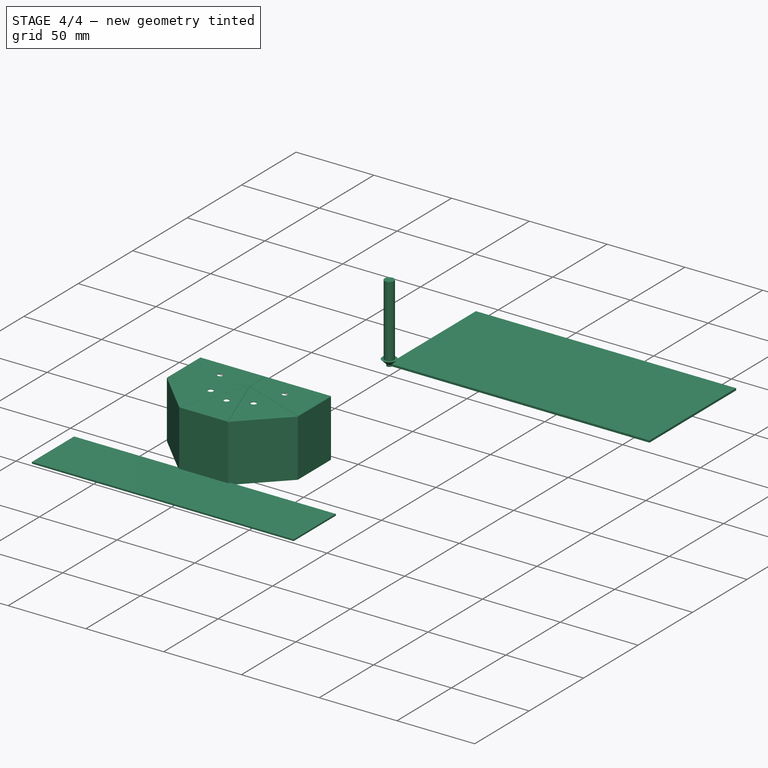
[diagram: stage 4 of 4 — iso view after this stage's code; geometry added in this stage tinted green]
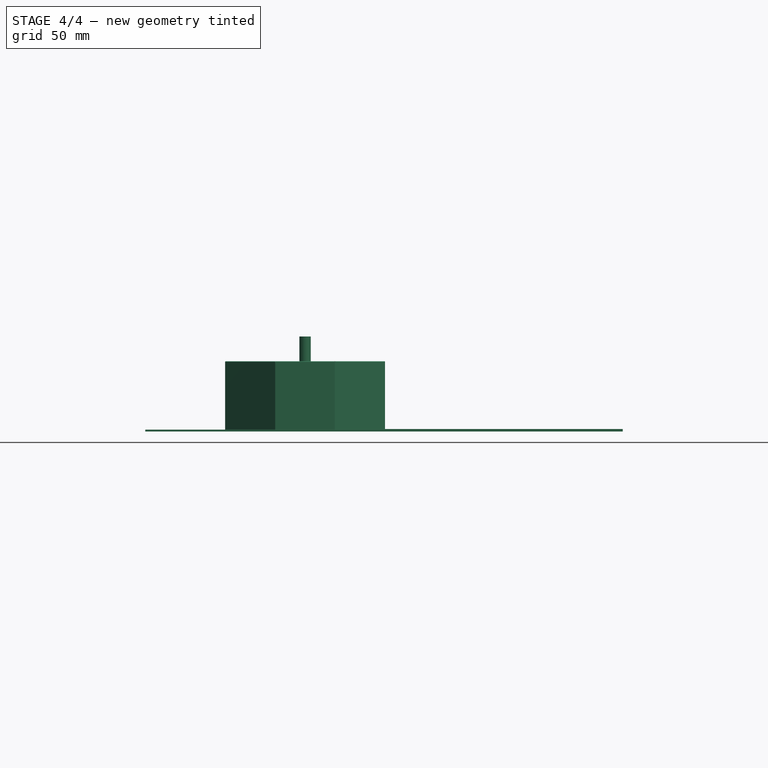
[diagram: stage 4 of 4 — front view after this stage's code; geometry added in this stage tinted green]
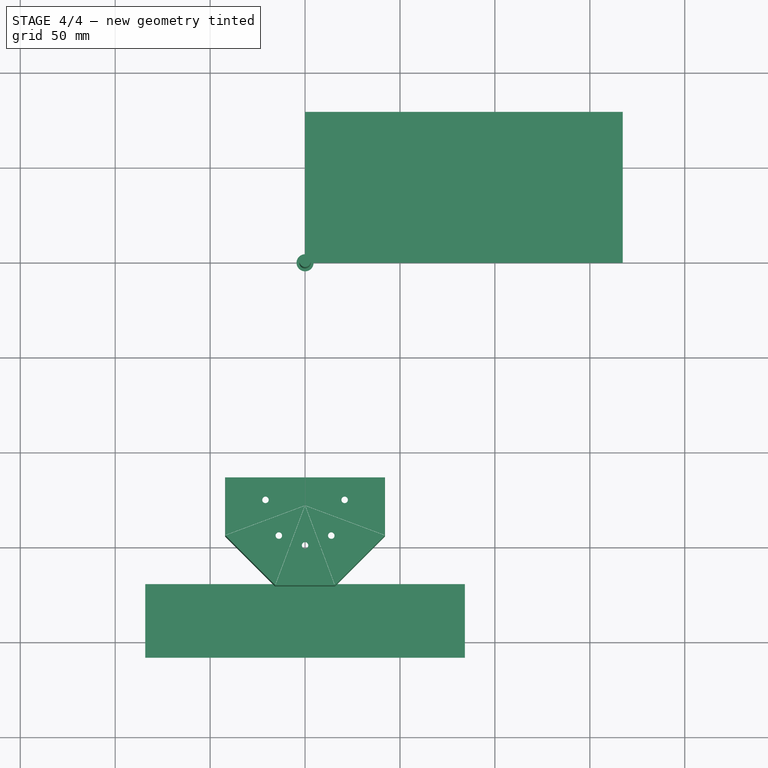
[diagram: stage 4 of 4 — top view after this stage's code; geometry added in this stage tinted green]
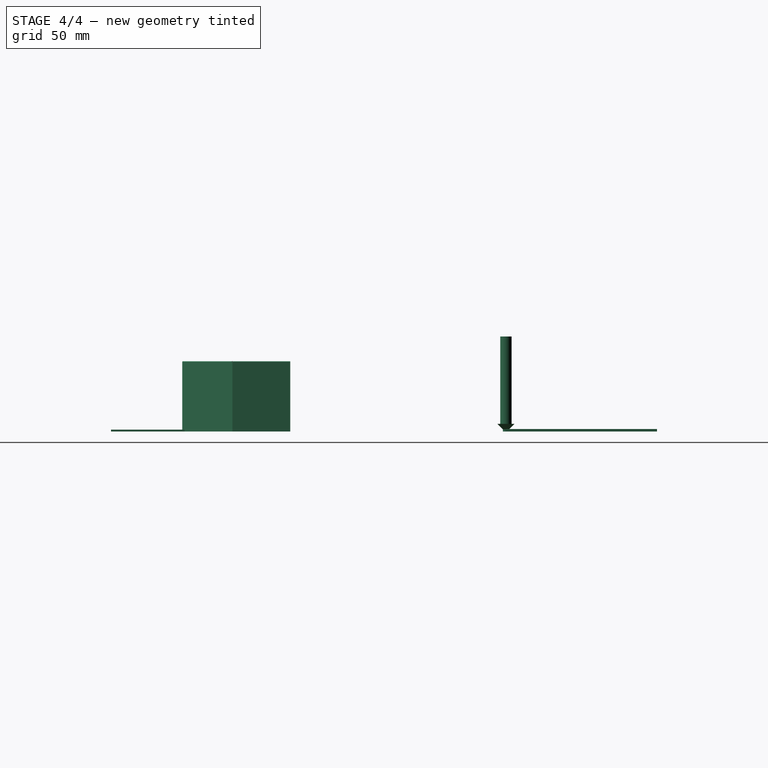
[diagram: stage 4 of 4 — right view after this stage's code; geometry added in this stage tinted green]
FEATURE [PartDesign::FeaturePython] Bend002  # WARN: FeaturePython — macro-defined, semantics opaque (R4)
  AutoMiter = false
  BaseFeature = -> Bend001
  BendType = 0
  LengthList = [15]
  LengthSpec = 0
  ReliefFactor = 0.7
  UseReliefFactor = false
  angle = 90
  baseObject = -> Bend001 [Edge236,Edge12]
  bendAList = [90]
  extend1 = 0
  extend2 = 0
  gap1 = 0
  gap2 = 3
  invert = false
  kfactor = 0.5
  length = 15
  maxExtendDist = 5
  minGap = 0.1
  minReliefGap = 1
  miterangle1 = 0
  miterangle2 = 30
  offset = 0
  radius = 0.1
  reliefType = 0
  reliefd = 1
  reliefw = 0.8
  sketchflip = false
  sketchinvert = false
  unfold = false
  expr: radius = BaseBend.radius
FEATURE [Sketcher::SketchObject] Sketch002
  ExternalGeometry = -> [Sketch]
  FullyConstrained = true
  MapMode = 5
  Support = -> [XY_Plane]
  sketch-geometry (5):
    g0: LineSegment StartX=15.7426 StartY=-170.5 StartZ=0 EndX=0 EndY=-128.4 EndZ=0
    g1: LineSegment StartX=0 StartY=-128.4 StartZ=0 EndX=42.1 EndY=-144.143 EndZ=0
    g2: LineSegment StartX=0 StartY=-128.4 StartZ=0 EndX=0 EndY=157.065 EndZ=0
    g3: LineSegment StartX=-42.1 StartY=-144.143 StartZ=0 EndX=0 EndY=-128.4 EndZ=0
    g4: LineSegment StartX=0 StartY=-128.4 StartZ=0 EndX=-15.7426 EndY=-170.5 EndZ=0
  constraints (12):
    c: Coincident(g-3,g0)
    c: PointOnObject(g0,g-2)
    c: Coincident(g0,g1)
    c: Coincident(g1,g-4)
    c: Coincident(g0,g2)
    c: PointOnObject(g2,g-2)
    c: Horizontal(g2,g-4)
    c: Equal(g0,g1)
    c: Coincident(g3,g0)
    c: Coincident(g3,g4)
    c: Coincident(g4,g-3)
    c: Symmetric(g3,g1,g-2)
FEATURE [Sketcher::SketchObject] Sketch003
  ExternalGeometry = -> [Sketch002]
  FullyConstrained = true
  MapMode = 5
  Support = -> [XY_Plane]
  sketch-geometry (9):
    g0: Circle CenterX=0 CenterY=-149.45 CenterZ=0 NormalX=0 NormalY=0 NormalZ=1 AngleXU=0 Radius=1.7
    g1: Circle CenterX=13.8114 CenterY=-144.285 CenterZ=0 NormalX=0 NormalY=0 NormalZ=1 AngleXU=0 Radius=1.7
    g2: Circle CenterX=20.8457 CenterY=-125.474 CenterZ=0 NormalX=0 NormalY=0 NormalZ=1 AngleXU=0 Radius=1.7
    g3: LineSegment StartX=0 StartY=-128.4 StartZ=0 EndX=0 EndY=-149.45 EndZ=0
    g4: LineSegment StartX=0 StartY=-149.45 StartZ=0 EndX=0 EndY=-170.5 EndZ=0
    g5: Circle CenterX=-13.8114 CenterY=-144.285 CenterZ=0 NormalX=0 NormalY=0 NormalZ=1 AngleXU=0 Radius=1.7
    g6: Circle CenterX=-20.8457 CenterY=-125.474 CenterZ=0 NormalX=0 NormalY=0 NormalZ=1 AngleXU=0 Radius=1.7
    g7: Circle CenterX=20.8457 CenterY=150 CenterZ=0 NormalX=0 NormalY=0 NormalZ=1 AngleXU=0 Radius=1.7
    g8: Circle CenterX=-20.8457 CenterY=150 CenterZ=0 NormalX=0 NormalY=0 NormalZ=1 AngleXU=0 Radius=1.7
  constraints (21):
    c: PointOnObject(g0,g-2)
    c: Symmetric(g1,g2,g-3)
    c: Symmetric(g0,g1,g-4)
    c: Coincident(g-4,g3)
    c: Coincident(g3,g0)
    c: Coincident(g3,g4)
    c: PointOnObject(g4,g-2)
    c: Horizontal(g4,g-4)
    c: Equal(g4,g3)
    c: Diameter(g0) = 3.4
    c: Equal(g6,g5)
    c: Equal(g5,g0)
    c: Equal(g0,g1)
    c: Equal(g1,g2)
    c: Symmetric(g5,g1,g-2)
    c: Symmetric(g6,g2,g-2)
    c: Equal(g8,g7)
    c: Equal(g7,g2)
    c: Vertical(g7,g2)
    c: Symmetric(g8,g7,g-2)
    c: DistanceY(g7) = 150
FEATURE [PartDesign::Pocket] Pocket001
  BaseFeature = -> Bend002
  Direction = (0,0,-1)
  Length = 5
  Length2 = 5
  Profile = -> Sketch003
  ReferenceAxis = -> Sketch003 [N_Axis]
  Reversed = true
  Type = 1
FEATURE [PartDesign::Body] Body001
  Origin = -> Origin001
FEATURE [Sketcher::SketchObject] Sketch004
  FullyConstrained = false
  MapMode = 5
  Support = -> [XY_Plane]
  sketch-geometry (4):
    g0: LineSegment StartX=-72.7836 StartY=-113.637 StartZ=0 EndX=63.5305 EndY=-113.637 EndZ=0
    g1: LineSegment StartX=63.5305 StartY=-113.637 StartZ=0 EndX=63.5305 EndY=-181.734 EndZ=0
    g2: LineSegment StartX=63.5305 StartY=-181.734 StartZ=0 EndX=-72.7836 EndY=-181.734 EndZ=0
    g3: LineSegment StartX=-72.7836 StartY=-181.734 StartZ=0 EndX=-72.7836 EndY=-113.637 EndZ=0
  constraints (8):
    c: Coincident(g0,g1)
    c: Coincident(g1,g2)
    c: Coincident(g2,g3)
    c: Coincident(g3,g0)
    c: Horizontal(g0)
    c: Horizontal(g2)
    c: Vertical(g1)
    c: Vertical(g3)
FEATURE [Part::FeaturePython] WireFilter  # WARN: FeaturePython — macro-defined, semantics opaque (R4)
  AttacherType = Attacher::AttachEngine3D
  ClaimChildren = true
  ColorKeyCount = 8
  Colorize = true
  FaceMaker = 5
  FixNormal = false
  FollowSource = true
  InvertedFaceScale = 20
  MaxWires = 25
  Normal = (0,0,1)
  OffsetFill = false
  OffsetIntersection = false
  OffsetJoin = 0
  OffsetOpenResult = false
  Scale = (1,1,1)
  SelectEdges = false
  Source = -> Sketch004
  UniformScale = 1
  UseDefault = false
  UseSelected = true
  UseSelectedEdges = false
  Version = 0.2022.02.09
  WireOrder = [1]
FEATURE [PartDesign::Pocket] Pocket002
  BaseFeature = -> Pocket001
  Direction = (0,0,-1)
  Length = 5
  Length2 = 5
  Midplane = true
  Profile = -> WireFilter
  Type = 1
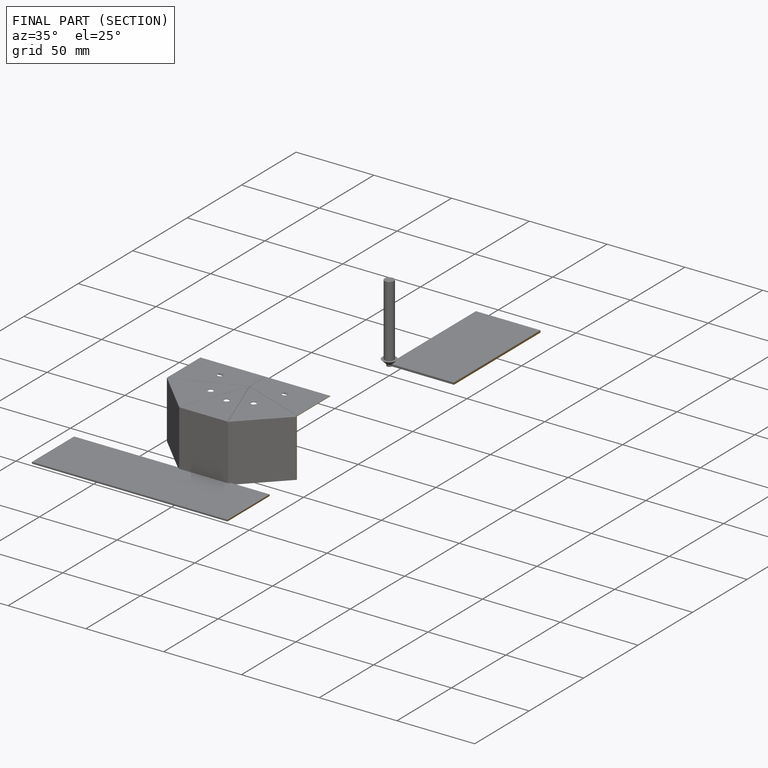
[diagram: finished part — half-section view (interior)]
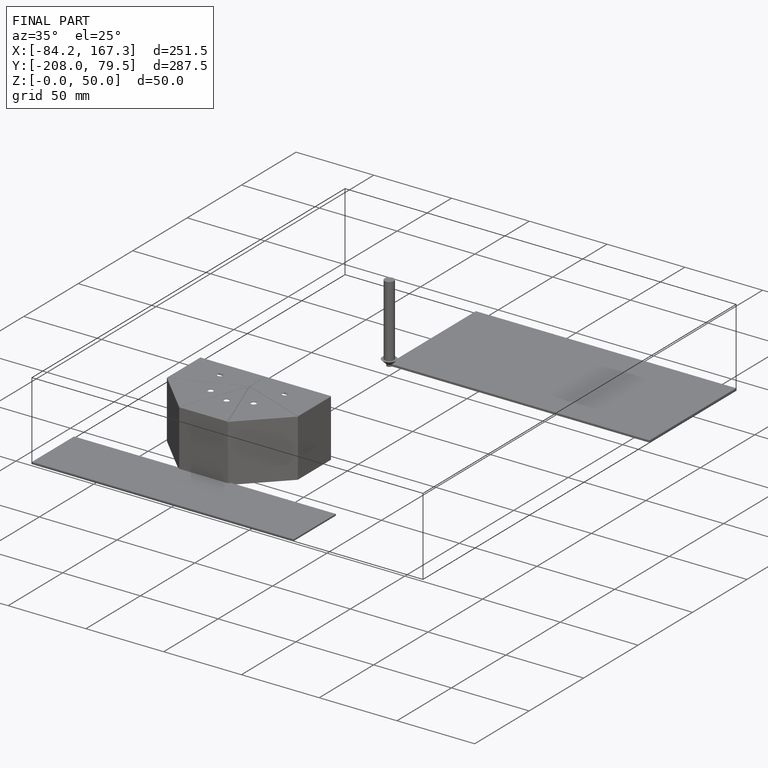
[diagram: finished part — iso view with bounding-box wireframe]
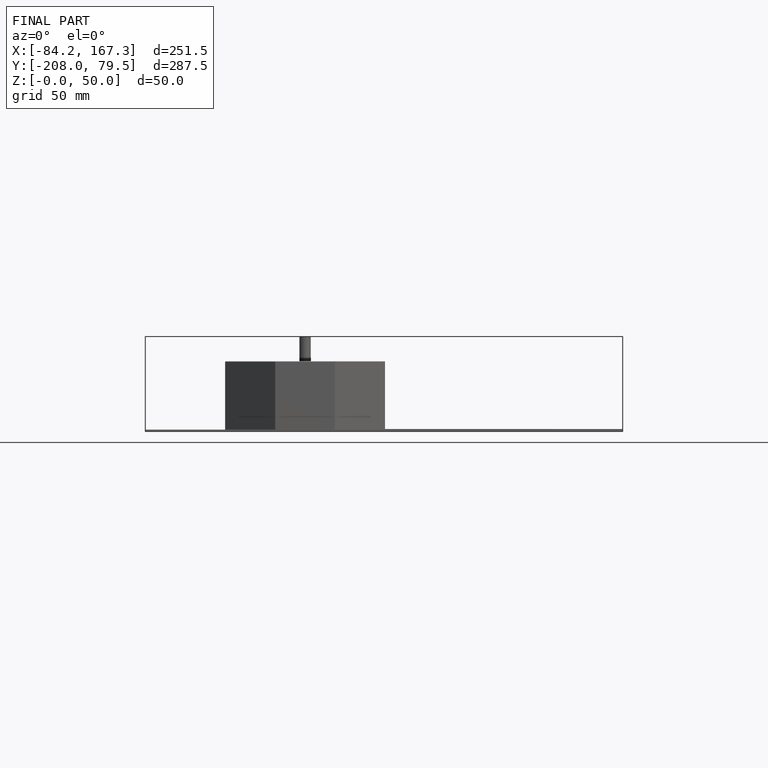
[diagram: finished part — front view with bounding-box wireframe]
